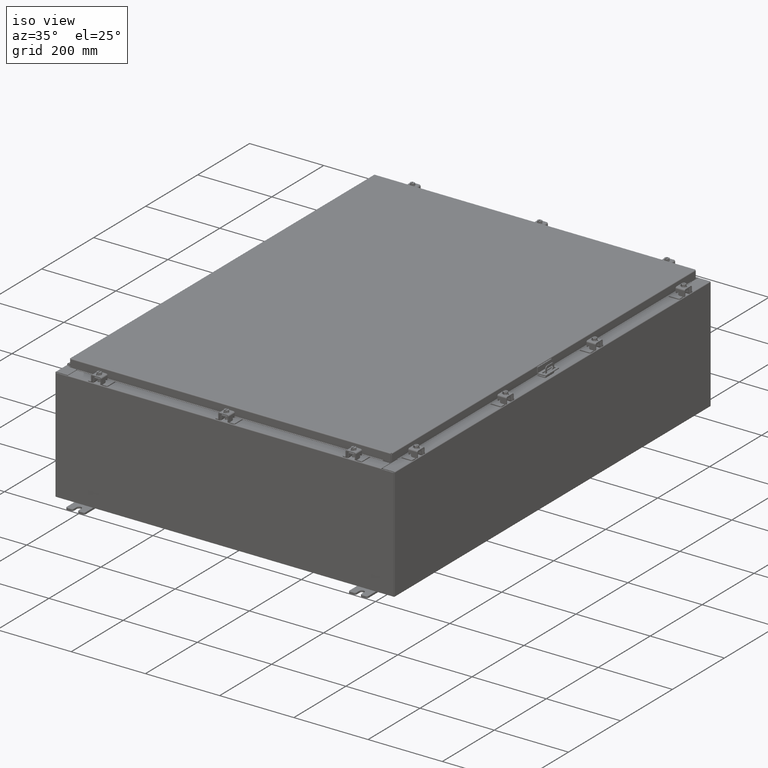
[diagram: clean part render]
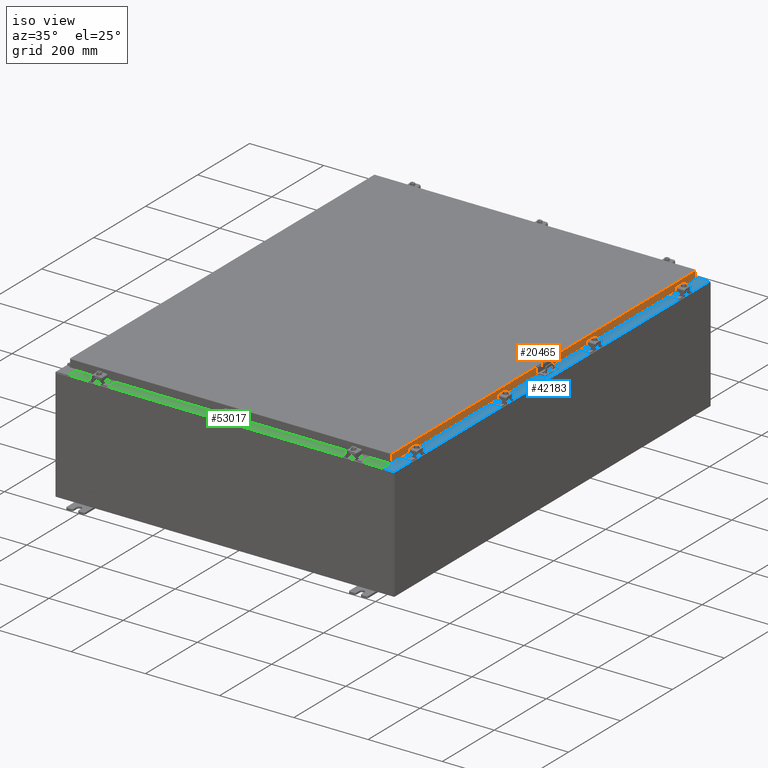
[diagram: same view with three faces highlighted in distinct colors, each labeled with its STEP entity id]
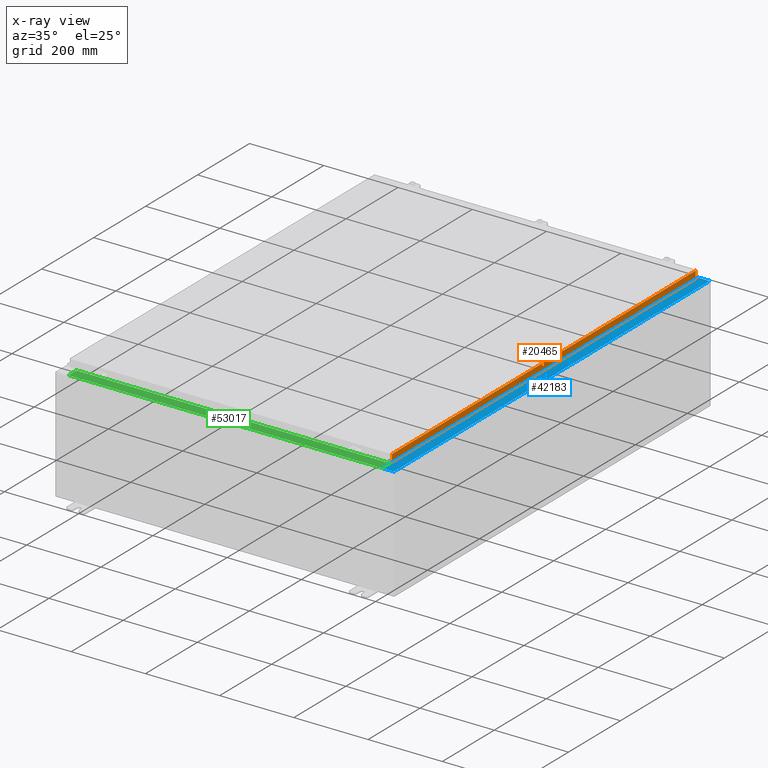
[diagram: x-ray of the same camera — body ghosted, the three highlighted faces saturated]
A machine part, iso view with three faces highlighted in distinct colors.
The next image is the same camera in x-ray (body ghosted, the three faces saturated) — at least one of them is partly hidden behind the body in this view.
Their STEP definitions:

[orange] entity #20465 — the highlighted planar face has unit normal (1, 0, 0).
#299 = VERTEX_POINT ( 'NONE', #18891 ) ;
#2514 = AXIS2_PLACEMENT_3D ( 'NONE', #41204, #16264, #45405 ) ;
#4841 = LINE ( 'NONE', #12275, #24273 ) ;
#5461 = CARTESIAN_POINT ( 'NONE',  ( 17.07799999999999600, 22.25515786437627200, -0.8500000000000020900 ) ) ;
#5534 = DIRECTION ( 'NONE',  ( -2.818880942772360100E-015, -6.982962677686267500E-015, 1.000000000000000000 ) ) ;
#5792 = DIRECTION ( 'NONE',  ( -2.818880942772360100E-015, -6.982962677686267500E-015, 1.000000000000000000 ) ) ;
#6512 = VECTOR ( 'NONE', #51849, 39.37007874015748100 ) ;
#6749 = VERTEX_POINT ( 'NONE', #5461 ) ;
#8572 = ORIENTED_EDGE ( 'NONE', *, *, #13660, .T. ) ;
#8830 = CARTESIAN_POINT ( 'NONE',  ( 17.07799999999999900, 23.00515786437627600, 2.090458211578982100E-013 ) ) ;
#8967 = VERTEX_POINT ( 'NONE', #45532 ) ;
#12275 = CARTESIAN_POINT ( 'NONE',  ( 17.07799999999999900, 0.0000000000000000000, -0.08770000000000007000 ) ) ;
#13660 = EDGE_CURVE ( 'NONE', #8967, #37461, #36159, .T. ) ;
#16264 = DIRECTION ( 'NONE',  ( 1.000000000000000000, 0.0000000000000000000, 2.818880942772360100E-015 ) ) ;
#17654 = DIRECTION ( 'NONE',  ( 0.0000000000000000000, -1.000000000000000000, 0.0000000000000000000 ) ) ;
#17690 = VERTEX_POINT ( 'NONE', #41772 ) ;
#17738 = CARTESIAN_POINT ( 'NONE',  ( 17.07800000000000300, -23.00515786437626200, -0.8499999999999996400 ) ) ;
#18891 = CARTESIAN_POINT ( 'NONE',  ( 17.07799999999999900, -23.00515786437626900, -0.08770000000000007000 ) ) ;
#20465 = ADVANCED_FACE ( 'NONE', ( #23532 ), #37006, .T. ) ;
#23342 = DIRECTION ( 'NONE',  ( 0.0000000000000000000, -1.000000000000000000, 0.0000000000000000000 ) ) ;
#23532 = FACE_OUTER_BOUND ( 'NONE', #43060, .T. ) ;
#23912 = ORIENTED_EDGE ( 'NONE', *, *, #24218, .F. ) ;
#24218 = EDGE_CURVE ( 'NONE', #6749, #17690, #35708, .T. ) ;
#24273 = VECTOR ( 'NONE', #45583, 39.37007874015748100 ) ;
#24319 = EDGE_CURVE ( 'NONE', #17690, #42146, #30479, .T. ) ;
#25054 = VECTOR ( 'NONE', #5534, 39.37007874015748100 ) ;
#27031 = ORIENTED_EDGE ( 'NONE', *, *, #24319, .F. ) ;
#27240 = ORIENTED_EDGE ( 'NONE', *, *, #49861, .F. ) ;
#29161 = VECTOR ( 'NONE', #23342, 39.37007874015748100 ) ;
#30479 = LINE ( 'NONE', #48364, #29161 ) ;
#35708 = LINE ( 'NONE', #47647, #6512 ) ;
#35903 = EDGE_CURVE ( 'NONE', #42146, #299, #51316, .T. ) ;
#36159 = LINE ( 'NONE', #8830, #25054 ) ;
#37006 = PLANE ( 'NONE',  #2514 ) ;
#37461 = VERTEX_POINT ( 'NONE', #40899 ) ;
#38145 = EDGE_CURVE ( 'NONE', #37461, #299, #4841, .T. ) ;
#38900 = VECTOR ( 'NONE', #5792, 39.37007874015748100 ) ;
#39421 = ORIENTED_EDGE ( 'NONE', *, *, #35903, .F. ) ;
#40411 = VECTOR ( 'NONE', #17654, 39.37007874015748100 ) ;
#40899 = CARTESIAN_POINT ( 'NONE',  ( 17.07799999999999900, 23.00515786437627200, -0.08770000000000007000 ) ) ;
#41204 = CARTESIAN_POINT ( 'NONE',  ( 17.07799999999999900, 0.0000000000000000000, 4.840166239667794100E-014 ) ) ;
#41772 = CARTESIAN_POINT ( 'NONE',  ( 17.07799999999999600, -22.25515786437626200, -0.8500000000000020900 ) ) ;
#42146 = VERTEX_POINT ( 'NONE', #17738 ) ;
#42581 = CARTESIAN_POINT ( 'NONE',  ( 17.07800000000000300, -23.09400000000000100, -0.8499999999999996400 ) ) ;
#43060 = EDGE_LOOP ( 'NONE', ( #39421, #27031, #23912, #27240, #8572, #46978 ) ) ;
#43062 = CARTESIAN_POINT ( 'NONE',  ( 17.07799999999999900, -23.00515786437626900, -0.07469999999999978000 ) ) ;
#45405 = DIRECTION ( 'NONE',  ( 2.818880942772360100E-015, 0.0000000000000000000, -1.000000000000000000 ) ) ;
#45532 = CARTESIAN_POINT ( 'NONE',  ( 17.07800000000000300, 23.00515786437628000, -0.8499999999999996400 ) ) ;
#45583 = DIRECTION ( 'NONE',  ( 0.0000000000000000000, -1.000000000000000000, 0.0000000000000000000 ) ) ;
#46978 = ORIENTED_EDGE ( 'NONE', *, *, #38145, .T. ) ;
#47647 = CARTESIAN_POINT ( 'NONE',  ( 17.07799999999999600, 22.25515786437628000, -0.8500000000000020900 ) ) ;
#48364 = CARTESIAN_POINT ( 'NONE',  ( 17.07800000000000300, -23.09400000000000100, -0.8499999999999996400 ) ) ;
#49861 = EDGE_CURVE ( 'NONE', #8967, #6749, #50233, .T. ) ;
#50233 = LINE ( 'NONE', #42581, #40411 ) ;
#51316 = LINE ( 'NONE', #43062, #38900 ) ;
#51849 = DIRECTION ( 'NONE',  ( 0.0000000000000000000, -1.000000000000000000, 0.0000000000000000000 ) ) ;

[blue] entity #42183 — the highlighted planar face has unit normal (-0, 0, -1).
#675 = ORIENTED_EDGE ( 'NONE', *, *, #52095, .F. ) ;
#1343 = VERTEX_POINT ( 'NONE', #41870 ) ;
#1481 = LINE ( 'NONE', #16455, #12542 ) ;
#2522 = CARTESIAN_POINT ( 'NONE',  ( 16.75005000000003700, 22.61242499999997000, 11.92530000000001200 ) ) ;
#2909 = DIRECTION ( 'NONE',  ( -1.000000000000000000, 0.0000000000000000000, 0.0000000000000000000 ) ) ;
#2954 = VERTEX_POINT ( 'NONE', #40715 ) ;
#4210 = VECTOR ( 'NONE', #37662, 39.37007874015748100 ) ;
#4792 = LINE ( 'NONE', #50277, #35284 ) ;
#5576 = DIRECTION ( 'NONE',  ( -7.132762385546384700E-015, 0.0000000000000000000, -1.000000000000000000 ) ) ;
#6066 = ORIENTED_EDGE ( 'NONE', *, *, #27392, .F. ) ;
#6189 = LINE ( 'NONE', #30340, #36734 ) ;
#6590 = ORIENTED_EDGE ( 'NONE', *, *, #44708, .T. ) ;
#6731 = DIRECTION ( 'NONE',  ( 1.000000000000000000, 0.0000000000000000000, 0.0000000000000000000 ) ) ;
#8812 = EDGE_CURVE ( 'NONE', #1343, #22769, #4792, .T. ) ;
#9743 = VECTOR ( 'NONE', #18836, 39.37007874015748100 ) ;
#10002 = VECTOR ( 'NONE', #15012, 39.37007874015748100 ) ;
#10496 = AXIS2_PLACEMENT_3D ( 'NONE', #2522, #31527, #6731 ) ;
#10794 = VECTOR ( 'NONE', #46286, 39.37007874015748100 ) ;
#11870 = VERTEX_POINT ( 'NONE', #23196 ) ;
#12542 = VECTOR ( 'NONE', #41378, 39.37007874015748100 ) ;
#13109 = AXIS2_PLACEMENT_3D ( 'NONE', #51256, #5576, #34606 ) ;
#13258 = VERTEX_POINT ( 'NONE', #45870 ) ;
#13775 = ORIENTED_EDGE ( 'NONE', *, *, #8812, .T. ) ;
#13928 = VERTEX_POINT ( 'NONE', #47348 ) ;
#13951 = EDGE_CURVE ( 'NONE', #13928, #18621, #21785, .T. ) ;
#15012 = DIRECTION ( 'NONE',  ( -1.000000000000000000, 0.0000000000000000000, 7.132762385546384700E-015 ) ) ;
#16143 = ORIENTED_EDGE ( 'NONE', *, *, #13951, .F. ) ;
#16455 = CARTESIAN_POINT ( 'NONE',  ( 16.71270000000003700, -22.59374999999998900, 11.92530000000001200 ) ) ;
#18024 = CARTESIAN_POINT ( 'NONE',  ( 16.75005000000003700, -22.61242499999998800, 11.92530000000001200 ) ) ;
#18601 = LINE ( 'NONE', #31889, #51875 ) ;
#18621 = VERTEX_POINT ( 'NONE', #19453 ) ;
#18772 = EDGE_CURVE ( 'NONE', #30648, #35162, #37374, .T. ) ;
#18836 = DIRECTION ( 'NONE',  ( -1.000000000000000000, 0.0000000000000000000, -4.340572780400098900E-014 ) ) ;
#19453 = CARTESIAN_POINT ( 'NONE',  ( 16.75005000000003700, -22.63109999999998600, 11.92530000000000900 ) ) ;
#19714 = EDGE_LOOP ( 'NONE', ( #16143, #20720, #36380, #675, #6590, #13775, #20932, #6066, #27509, #21128, #53112, #26982 ) ) ;
#20515 = EDGE_CURVE ( 'NONE', #11870, #44481, #1481, .T. ) ;
#20720 = ORIENTED_EDGE ( 'NONE', *, *, #43903, .T. ) ;
#20932 = ORIENTED_EDGE ( 'NONE', *, *, #47137, .F. ) ;
#21003 = LINE ( 'NONE', #31512, #10002 ) ;
#21128 = ORIENTED_EDGE ( 'NONE', *, *, #20515, .F. ) ;
#21178 = CARTESIAN_POINT ( 'NONE',  ( 17.91230000000003700, -23.92529999999998900, 11.92530000000000400 ) ) ;
#21785 = LINE ( 'NONE', #46401, #10794 ) ;
#22167 = DIRECTION ( 'NONE',  ( 1.000000000000000000, 0.0000000000000000000, 0.0000000000000000000 ) ) ;
#22769 = VERTEX_POINT ( 'NONE', #45351 ) ;
#23196 = CARTESIAN_POINT ( 'NONE',  ( 16.71270000000003700, -22.59374999999998900, 11.92530000000001200 ) ) ;
#25035 = CARTESIAN_POINT ( 'NONE',  ( 8.532114493236880700E-014, -23.92529999999998900, 11.92530000000013000 ) ) ;
#25325 = DIRECTION ( 'NONE',  ( -0.0000000000000000000, -1.000000000000000000, -0.0000000000000000000 ) ) ;
#25679 = CARTESIAN_POINT ( 'NONE',  ( 16.71270000000003700, 22.59374999999997200, 11.92530000000001200 ) ) ;
#26787 = CARTESIAN_POINT ( 'NONE',  ( 16.75005000000003700, 22.59374999999997200, 11.92530000000000900 ) ) ;
#26982 = ORIENTED_EDGE ( 'NONE', *, *, #28498, .F. ) ;
#27158 = CARTESIAN_POINT ( 'NONE',  ( 16.75005000000003700, 22.63109999999996800, 11.92530000000001200 ) ) ;
#27392 = EDGE_CURVE ( 'NONE', #35990, #49103, #46251, .T. ) ;
#27509 = ORIENTED_EDGE ( 'NONE', *, *, #43174, .F. ) ;
#27727 = FACE_OUTER_BOUND ( 'NONE', #19714, .T. ) ;
#28498 = EDGE_CURVE ( 'NONE', #18621, #13258, #53141, .T. ) ;
#28882 = CARTESIAN_POINT ( 'NONE',  ( 16.69970000000003900, -23.92529999999998900, 11.92530000000000900 ) ) ;
#29909 = CARTESIAN_POINT ( 'NONE',  ( 16.71270000000003700, 22.59374999999997200, 11.92530000000001200 ) ) ;
#30340 = CARTESIAN_POINT ( 'NONE',  ( 16.69970000000003900, 0.0000000000000000000, 11.92530000000000900 ) ) ;
#30648 = VERTEX_POINT ( 'NONE', #28882 ) ;
#31512 = CARTESIAN_POINT ( 'NONE',  ( 8.532114493236880700E-014, 23.92529999999998600, 11.92530000000013000 ) ) ;
#31527 = DIRECTION ( 'NONE',  ( 7.132762385546384700E-015, 0.0000000000000000000, 1.000000000000000000 ) ) ;
#31889 = CARTESIAN_POINT ( 'NONE',  ( 16.75005000000003700, -22.59374999999998900, 11.92530000000001200 ) ) ;
#32591 = CARTESIAN_POINT ( 'NONE',  ( 16.75005000000003700, 22.63109999999996800, 11.92530000000000900 ) ) ;
#33289 = LINE ( 'NONE', #27158, #9743 ) ;
#33660 = VECTOR ( 'NONE', #25325, 39.37007874015748100 ) ;
#33779 = CARTESIAN_POINT ( 'NONE',  ( 17.91230000000003700, -23.92529999999998900, 11.92530000000000400 ) ) ;
#34421 = PLANE ( 'NONE',  #13109 ) ;
#34606 = DIRECTION ( 'NONE',  ( -1.000000000000000000, 0.0000000000000000000, 7.132762385546384700E-015 ) ) ;
#35162 = VERTEX_POINT ( 'NONE', #33779 ) ;
#35284 = VECTOR ( 'NONE', #49754, 39.37007874015748100 ) ;
#35990 = VERTEX_POINT ( 'NONE', #26787 ) ;
#36133 = VECTOR ( 'NONE', #50722, 39.37007874015748100 ) ;
#36329 = LINE ( 'NONE', #21178, #33660 ) ;
#36380 = ORIENTED_EDGE ( 'NONE', *, *, #18772, .T. ) ;
#36734 = VECTOR ( 'NONE', #51203, 39.37007874015748100 ) ;
#37374 = LINE ( 'NONE', #25035, #4210 ) ;
#37662 = DIRECTION ( 'NONE',  ( 1.000000000000000000, 0.0000000000000000000, -7.132762385546384700E-015 ) ) ;
#40715 = CARTESIAN_POINT ( 'NONE',  ( 17.91230000000003700, 23.92529999999998600, 11.92530000000000400 ) ) ;
#41378 = DIRECTION ( 'NONE',  ( -0.0000000000000000000, 1.000000000000000000, -0.0000000000000000000 ) ) ;
#41870 = CARTESIAN_POINT ( 'NONE',  ( 16.69970000000003900, 23.92529999999998200, 11.92530000000000900 ) ) ;
#42183 = ADVANCED_FACE ( 'NONE', ( #27727 ), #34421, .F. ) ;
#42849 = EDGE_CURVE ( 'NONE', #13258, #11870, #18601, .T. ) ;
#43174 = EDGE_CURVE ( 'NONE', #44481, #35990, #48581, .T. ) ;
#43903 = EDGE_CURVE ( 'NONE', #13928, #30648, #6189, .T. ) ;
#44481 = VERTEX_POINT ( 'NONE', #29909 ) ;
#44708 = EDGE_CURVE ( 'NONE', #2954, #1343, #21003, .T. ) ;
#45351 = CARTESIAN_POINT ( 'NONE',  ( 16.69970000000003900, 22.63109999999996800, 11.92530000000000900 ) ) ;
#45870 = CARTESIAN_POINT ( 'NONE',  ( 16.75005000000003700, -22.59374999999998900, 11.92530000000000900 ) ) ;
#46251 = CIRCLE ( 'NONE', #10496, 0.01867499999999949400 ) ;
#46286 = DIRECTION ( 'NONE',  ( 1.000000000000000000, 0.0000000000000000000, 4.340572780400098900E-014 ) ) ;
#46401 = CARTESIAN_POINT ( 'NONE',  ( 16.69970000000003900, -22.63109999999998600, 11.92530000000000900 ) ) ;
#47137 = EDGE_CURVE ( 'NONE', #49103, #22769, #33289, .T. ) ;
#47173 = DIRECTION ( 'NONE',  ( 7.132762385546384700E-015, 0.0000000000000000000, 1.000000000000000000 ) ) ;
#47348 = CARTESIAN_POINT ( 'NONE',  ( 16.69970000000003900, -22.63109999999998600, 11.92530000000000900 ) ) ;
#48581 = LINE ( 'NONE', #25679, #36133 ) ;
#49103 = VERTEX_POINT ( 'NONE', #32591 ) ;
#49754 = DIRECTION ( 'NONE',  ( 0.0000000000000000000, -1.000000000000000000, 0.0000000000000000000 ) ) ;
#50277 = CARTESIAN_POINT ( 'NONE',  ( 16.69970000000003900, 0.0000000000000000000, 11.92530000000000900 ) ) ;
#50722 = DIRECTION ( 'NONE',  ( 1.000000000000000000, 0.0000000000000000000, 0.0000000000000000000 ) ) ;
#51203 = DIRECTION ( 'NONE',  ( 0.0000000000000000000, -1.000000000000000000, 0.0000000000000000000 ) ) ;
#51256 = CARTESIAN_POINT ( 'NONE',  ( 8.532114493236880700E-014, 0.0000000000000000000, 11.92530000000013000 ) ) ;
#51875 = VECTOR ( 'NONE', #2909, 39.37007874015748100 ) ;
#52036 = AXIS2_PLACEMENT_3D ( 'NONE', #18024, #47173, #22167 ) ;
#52095 = EDGE_CURVE ( 'NONE', #2954, #35162, #36329, .T. ) ;
#53112 = ORIENTED_EDGE ( 'NONE', *, *, #42849, .F. ) ;
#53141 = CIRCLE ( 'NONE', #52036, 0.01867499999999949400 ) ;

[green] entity #53017 — the highlighted planar face has unit normal (-0, -0, 1).
#225 = ORIENTED_EDGE ( 'NONE', *, *, #19015, .F. ) ;
#273 = EDGE_LOOP ( 'NONE', ( #17091, #19662, #225, #15711 ) ) ;
#6021 = CARTESIAN_POINT ( 'NONE',  ( 16.63720000000000400, -1.300299999999999800, 6.000000000000003600 ) ) ;
#6827 = DIRECTION ( 'NONE',  ( -1.000000000000000000, 3.284023746380717400E-017, -8.784060394284559800E-032 ) ) ;
#7372 = CARTESIAN_POINT ( 'NONE',  ( -5.156971724347648400E-018, -0.08769999999999972300, 5.999999999999999100 ) ) ;
#7835 = EDGE_CURVE ( 'NONE', #16988, #41780, #13291, .T. ) ;
#8310 = FACE_OUTER_BOUND ( 'NONE', #273, .T. ) ;
#8981 = LINE ( 'NONE', #21655, #30990 ) ;
#12263 = CARTESIAN_POINT ( 'NONE',  ( 16.63720000000000400, -1.287299999999999400, 6.000000000000003600 ) ) ;
#12895 = EDGE_CURVE ( 'NONE', #17114, #51628, #8981, .T. ) ;
#13291 = LINE ( 'NONE', #7372, #45201 ) ;
#14379 = DIRECTION ( 'NONE',  ( 0.0000000000000000000, 2.674785894579892700E-015, 1.000000000000000000 ) ) ;
#14856 = CARTESIAN_POINT ( 'NONE',  ( 16.63720000000000400, -0.08769999999999948700, 5.999999999999999100 ) ) ;
#15711 = ORIENTED_EDGE ( 'NONE', *, *, #7835, .T. ) ;
#16988 = VERTEX_POINT ( 'NONE', #14856 ) ;
#17091 = ORIENTED_EDGE ( 'NONE', *, *, #37830, .F. ) ;
#17114 = VERTEX_POINT ( 'NONE', #12263 ) ;
#17808 = CARTESIAN_POINT ( 'NONE',  ( -16.63719999999999600, -1.287299999999998600, 6.000000000000002700 ) ) ;
#19015 = EDGE_CURVE ( 'NONE', #16988, #17114, #25547, .T. ) ;
#19662 = ORIENTED_EDGE ( 'NONE', *, *, #12895, .F. ) ;
#21655 = CARTESIAN_POINT ( 'NONE',  ( 16.63720000000000400, -1.287299999999999400, 6.000000000000001800 ) ) ;
#23491 = DIRECTION ( 'NONE',  ( -1.000000000000000000, 0.0000000000000000000, 0.0000000000000000000 ) ) ;
#25547 = LINE ( 'NONE', #6021, #28147 ) ;
#26684 = PLANE ( 'NONE',  #46680 ) ;
#28147 = VECTOR ( 'NONE', #30829, 39.37007874015748100 ) ;
#30166 = VECTOR ( 'NONE', #51823, 39.37007874015748100 ) ;
#30829 = DIRECTION ( 'NONE',  ( -0.0000000000000000000, -1.000000000000000000, 3.566381192773190000E-015 ) ) ;
#30990 = VECTOR ( 'NONE', #23491, 39.37007874015748100 ) ;
#34887 = CARTESIAN_POINT ( 'NONE',  ( -2.276882898771239300E-018, 1.610972251716581800E-014, 5.999999999999999100 ) ) ;
#37830 = EDGE_CURVE ( 'NONE', #51628, #41780, #49808, .T. ) ;
#39220 = CARTESIAN_POINT ( 'NONE',  ( -16.63719999999999600, -0.07469999999999973900, 5.999999999999999100 ) ) ;
#41780 = VERTEX_POINT ( 'NONE', #43599 ) ;
#43495 = DIRECTION ( 'NONE',  ( 0.0000000000000000000, -1.000000000000000000, 2.674785894579892700E-015 ) ) ;
#43599 = CARTESIAN_POINT ( 'NONE',  ( -16.63719999999999600, -0.08769999999999972300, 5.999999999999999100 ) ) ;
#45201 = VECTOR ( 'NONE', #6827, 39.37007874015748100 ) ;
#46680 = AXIS2_PLACEMENT_3D ( 'NONE', #34887, #14379, #43495 ) ;
#49808 = LINE ( 'NONE', #39220, #30166 ) ;
#51628 = VERTEX_POINT ( 'NONE', #17808 ) ;
#51823 = DIRECTION ( 'NONE',  ( -0.0000000000000000000, 1.000000000000000000, -2.674785894579892700E-015 ) ) ;
#53017 = ADVANCED_FACE ( 'NONE', ( #8310 ), #26684, .T. ) ;